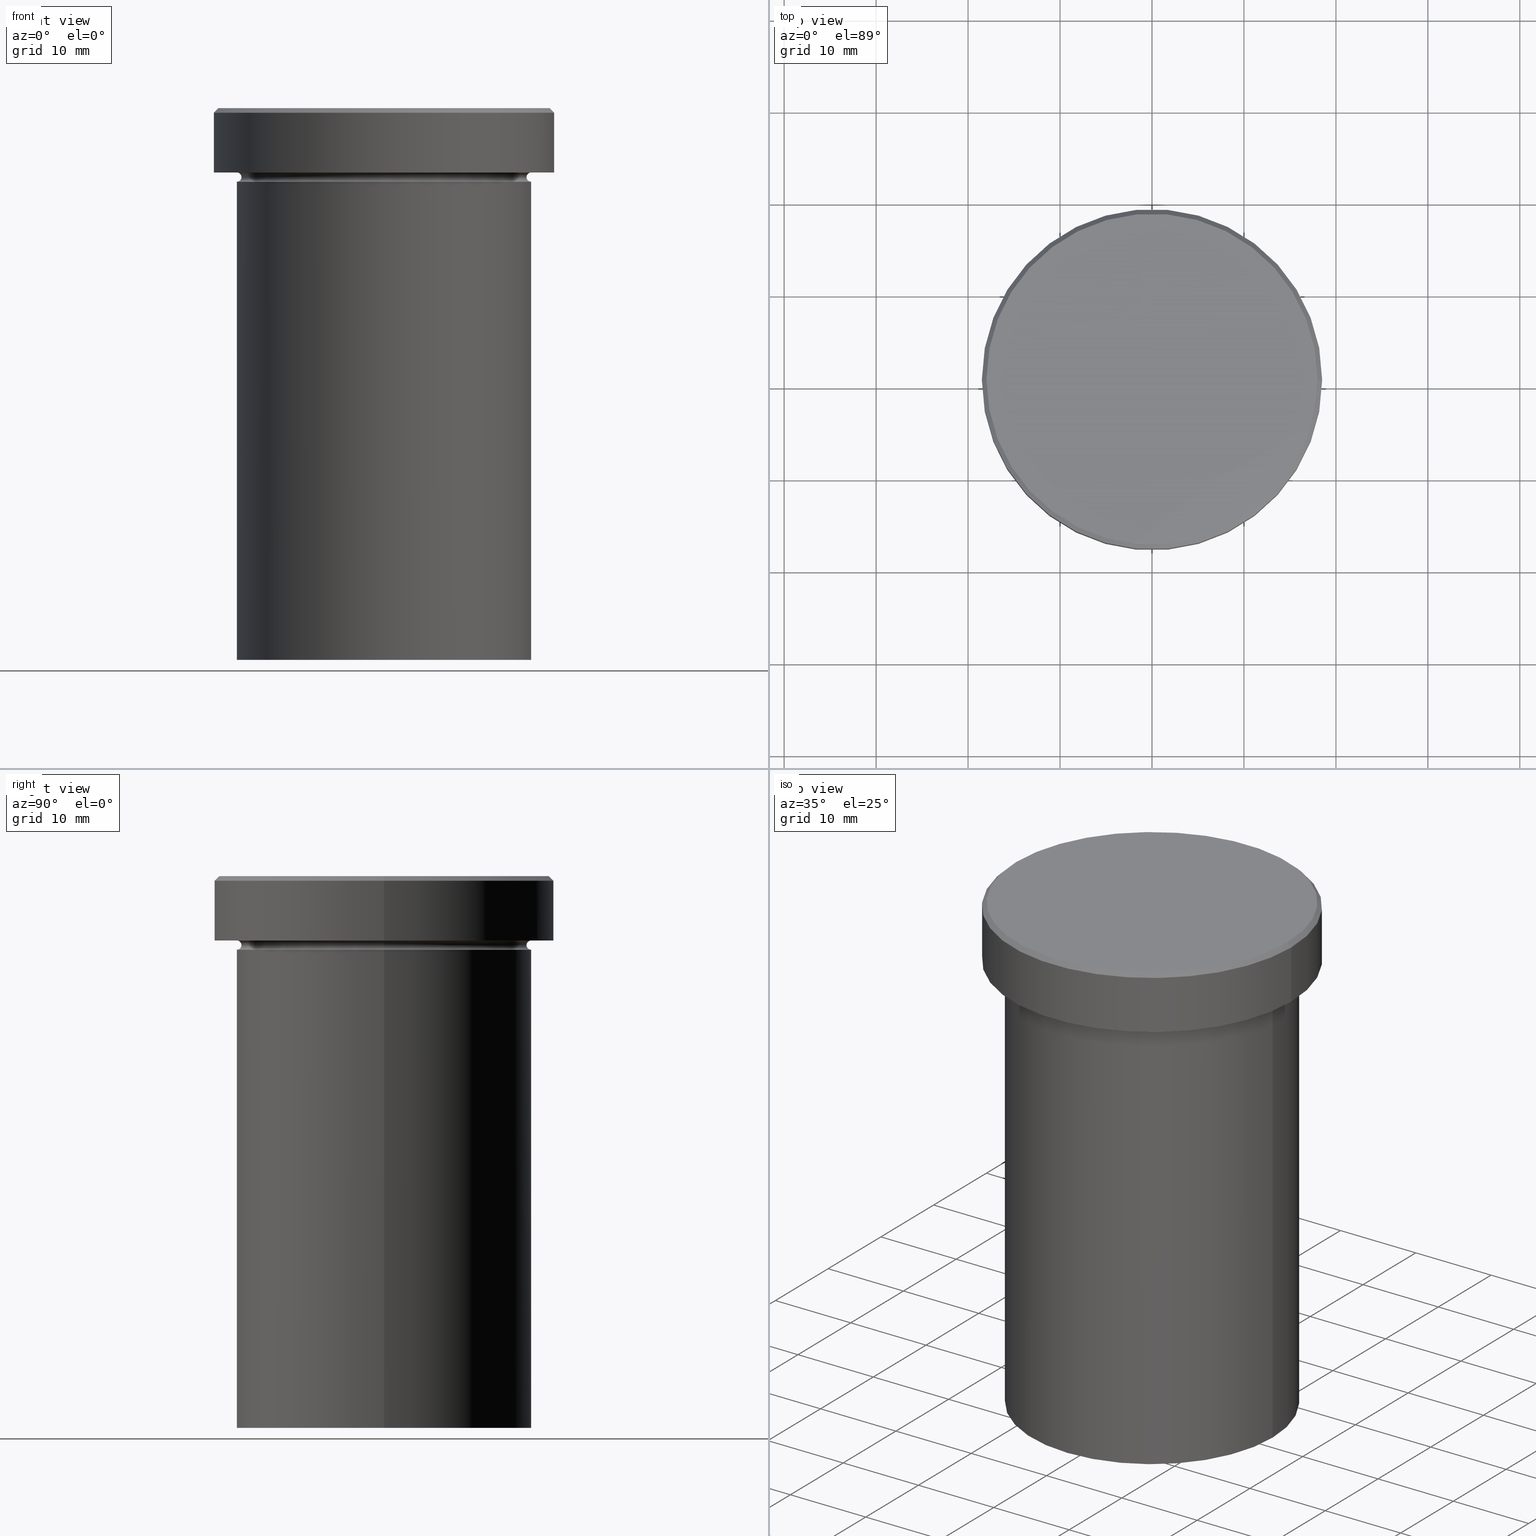
[diagram: canonical four-view strip — front | top / right | iso, engineering-drawing reading convention]
A machine part, canonical four-view strip (front | top / right | iso — engineering-drawing reading convention). The complete STEP part file that produces these views, byte-faithful:
ISO-10303-21;
HEADER;
FILE_DESCRIPTION (( 'STEP AP203' ),
    '1' );
FILE_NAME ('1dc0.STEP',
    '2024-01-02T18:53:36',
    ( '' ),
    ( '' ),
    'SwSTEP 2.0',
    'SolidWorks 2019',
    '' );
FILE_SCHEMA (( 'CONFIG_CONTROL_DESIGN' ));
ENDSEC;

DATA;
#1 = DIRECTION ( 'NONE',  ( 1.000000000000000000, 0.000000000000000000, 0.000000000000000000 ) ) ;
#2 = ORIENTED_EDGE ( 'NONE', *, *, #13, .T. ) ;
#3 = PERSON_AND_ORGANIZATION ( #186, #145 ) ;
#4 = EDGE_CURVE ( 'NONE', #205, #122, #215, .T. ) ;
#5 = DIRECTION ( 'NONE',  ( 1.000000000000000000, 0.000000000000000000, 0.000000000000000000 ) ) ;
#6 = ORIENTED_EDGE ( 'NONE', *, *, #24, .F. ) ;
#7 = APPROVAL_ROLE ( '' ) ;
#8 = TOROIDAL_SURFACE ( 'NONE', #173, 16.00000000000000000, 0.5000000000000000000 ) ;
#9 = FACE_OUTER_BOUND ( 'NONE', #139, .T. ) ;
#10 = DATE_AND_TIME ( #37, #379 ) ;
#11 = CIRCLE ( 'NONE', #300, 16.00000000000000000 ) ;
#12 = CARTESIAN_POINT ( 'NONE',  ( 0.000000000000000000, 0.000000000000000000, -7.500000000000000000 ) ) ;
#13 = EDGE_CURVE ( 'NONE', #41, #221, #184, .T. ) ;
#14 = CARTESIAN_POINT ( 'NONE',  ( -18.00000000000001421, 0.000000000000000000, 0.000000000000000000 ) ) ;
#15 = APPROVAL_STATUS ( 'not_yet_approved' ) ;
#16 = DIRECTION ( 'NONE',  ( -0.000000000000000000, -0.000000000000000000, 1.000000000000000000 ) ) ;
#17 = DIRECTION ( 'NONE',  ( -1.000000000000000000, 0.000000000000000000, 0.000000000000000000 ) ) ;
#18 = CIRCLE ( 'NONE', #331, 0.5000000000000004441 ) ;
#19 = DIRECTION ( 'NONE',  ( 0.000000000000000000, 0.000000000000000000, -1.000000000000000000 ) ) ;
#20 = ORIENTED_EDGE ( 'NONE', *, *, #318, .F. ) ;
#21 = ADVANCED_FACE ( 'NONE', ( #121 ), #8, .F. ) ;
#22 = DIRECTION ( 'NONE',  ( -1.000000000000000000, 0.000000000000000000, 0.000000000000000000 ) ) ;
#23 = ORIENTED_EDGE ( 'NONE', *, *, #103, .T. ) ;
#24 = EDGE_CURVE ( 'NONE', #54, #185, #35, .T. ) ;
#25 = AXIS2_PLACEMENT_3D ( 'NONE', #172, #16, #48 ) ;
#26 = CARTESIAN_POINT ( 'NONE',  ( 0.000000000000000000, 0.000000000000000000, -6.999999999999998224 ) ) ;
#27 = AXIS2_PLACEMENT_3D ( 'NONE', #218, #374, #225 ) ;
#28 = CARTESIAN_POINT ( 'NONE',  ( 0.000000000000000000, 0.000000000000000000, -7.500000000000000000 ) ) ;
#29 = AXIS2_PLACEMENT_3D ( 'NONE', #158, #219, #17 ) ;
#30 = DIRECTION ( 'NONE',  ( -0.000000000000000000, -0.000000000000000000, 1.000000000000000000 ) ) ;
#31 = APPROVAL ( #81, 'NEUR�EN�' ) ;
#32 = ORIENTED_EDGE ( 'NONE', *, *, #112, .T. ) ;
#33 = DIRECTION ( 'NONE',  ( 1.000000000000000000, 0.000000000000000000, 0.000000000000000000 ) ) ;
#34 = LINE ( 'NONE', #314, #244 ) ;
#35 = CIRCLE ( 'NONE', #226, 0.5000000000000004441 ) ;
#36 = EDGE_LOOP ( 'NONE', ( #182, #223, #39, #155 ) ) ;
#37 = CALENDAR_DATE ( 2024, 2, 1 ) ;
#38 = EDGE_CURVE ( 'NONE', #234, #350, #207, .T. ) ;
#39 = ORIENTED_EDGE ( 'NONE', *, *, #87, .T. ) ;
#40 = CC_DESIGN_APPROVAL ( #31, ( #120 ) ) ;
#41 = VERTEX_POINT ( 'NONE', #14 ) ;
#42 = APPROVAL_DATE_TIME ( #197, #31 ) ;
#43 = CARTESIAN_POINT ( 'NONE',  ( 0.000000000000000000, 0.000000000000000000, 0.000000000000000000 ) ) ;
#44 = VERTEX_POINT ( 'NONE', #147 ) ;
#45 = CARTESIAN_POINT ( 'NONE',  ( 0.000000000000000000, 0.000000000000000000, -7.500000000000000000 ) ) ;
#46 = ADVANCED_FACE ( 'NONE', ( #181 ), #273, .T. ) ;
#47 = CARTESIAN_POINT ( 'NONE',  ( 18.50000000000000000, 0.000000000000000000, 0.000000000000000000 ) ) ;
#48 = DIRECTION ( 'NONE',  ( 1.000000000000000000, 0.000000000000000000, 0.000000000000000000 ) ) ;
#49 = AXIS2_PLACEMENT_3D ( 'NONE', #68, #195, #248 ) ;
#50 = ADVANCED_FACE ( 'NONE', ( #278 ), #192, .F. ) ;
#51 = EDGE_LOOP ( 'NONE', ( #287, #32, #166, #6 ) ) ;
#52 = LOCAL_TIME ( 19, 53, 36.00000000000000000, #148 ) ;
#53 = DIRECTION ( 'NONE',  ( -0.000000000000000000, -1.000000000000000000, -0.000000000000000000 ) ) ;
#54 = VERTEX_POINT ( 'NONE', #380 ) ;
#55 = EDGE_CURVE ( 'NONE', #185, #241, #308, .T. ) ;
#56 = VECTOR ( 'NONE', #398, 1000.000000000000114 ) ;
#57 = DIRECTION ( 'NONE',  ( 0.000000000000000000, 0.000000000000000000, -1.000000000000000000 ) ) ;
#58 = TOROIDAL_SURFACE ( 'NONE', #354, 16.00000000000000000, 0.5000000000000000000 ) ;
#59 = DIRECTION ( 'NONE',  ( 0.000000000000000000, 0.000000000000000000, -1.000000000000000000 ) ) ;
#60 = DIRECTION ( 'NONE',  ( -0.000000000000000000, -0.000000000000000000, 1.000000000000000000 ) ) ;
#61 = CC_DESIGN_PERSON_AND_ORGANIZATION_ASSIGNMENT ( #146, #390, ( #120 ) ) ;
#62 = DIRECTION ( 'NONE',  ( -1.000000000000000000, 0.000000000000000000, -0.000000000000000000 ) ) ;
#63 = CYLINDRICAL_SURFACE ( 'NONE', #64, 18.50000000000000000 ) ;
#64 = AXIS2_PLACEMENT_3D ( 'NONE', #43, #272, #149 ) ;
#65 = AXIS2_PLACEMENT_3D ( 'NONE', #72, #117, #385 ) ;
#66 = DIRECTION ( 'NONE',  ( -1.000000000000000000, 0.000000000000000000, 0.000000000000000000 ) ) ;
#67 = DESIGN_CONTEXT ( 'detailed design', #212, 'design' ) ;
#68 = CARTESIAN_POINT ( 'NONE',  ( 0.000000000000000000, 0.000000000000000000, -7.500000000000000000 ) ) ;
#69 = CC_DESIGN_DATE_AND_TIME_ASSIGNMENT ( #105, #75, ( #227 ) ) ;
#70 = VECTOR ( 'NONE', #118, 1000.000000000000000 ) ;
#71 = ORIENTED_EDGE ( 'NONE', *, *, #38, .T. ) ;
#72 = CARTESIAN_POINT ( 'NONE',  ( 0.000000000000000000, 0.000000000000000000, 0.000000000000000000 ) ) ;
#73 = AXIS2_PLACEMENT_3D ( 'NONE', #313, #190, #258 ) ;
#74 = ORIENTED_EDGE ( 'NONE', *, *, #180, .F. ) ;
#75 = DATE_TIME_ROLE ( 'creation_date' ) ;
#76 = DIRECTION ( 'NONE',  ( -0.000000000000000000, -0.000000000000000000, 1.000000000000000000 ) ) ;
#77 = ORIENTED_EDGE ( 'NONE', *, *, #82, .F. ) ;
#78 = PERSON_AND_ORGANIZATION_ROLE ( 'creator' ) ;
#79 = DIRECTION ( 'NONE',  ( -0.000000000000000000, -0.000000000000000000, 1.000000000000000000 ) ) ;
#80 = EDGE_LOOP ( 'NONE', ( #399, #262, #277, #124 ) ) ;
#81 = APPROVAL_STATUS ( 'not_yet_approved' ) ;
#82 = EDGE_CURVE ( 'NONE', #389, #122, #34, .T. ) ;
#83 = CARTESIAN_POINT ( 'NONE',  ( 0.000000000000000000, 0.000000000000000000, -60.00000000000000000 ) ) ;
#84 = EDGE_LOOP ( 'NONE', ( #20, #136, #334, #377 ) ) ;
#85 = DIRECTION ( 'NONE',  ( -0.000000000000000000, -0.000000000000000000, 1.000000000000000000 ) ) ;
#86 = CIRCLE ( 'NONE', #29, 16.00000000000000000 ) ;
#87 = EDGE_CURVE ( 'NONE', #221, #122, #183, .T. ) ;
#88 = ORIENTED_EDGE ( 'NONE', *, *, #55, .T. ) ;
#89 = CIRCLE ( 'NONE', #152, 0.5000000000000004441 ) ;
#90 = DIRECTION ( 'NONE',  ( 0.000000000000000000, 0.000000000000000000, -1.000000000000000000 ) ) ;
#91 = ORIENTED_EDGE ( 'NONE', *, *, #394, .T. ) ;
#92 = EDGE_CURVE ( 'NONE', #41, #389, #161, .T. ) ;
#93 = EDGE_LOOP ( 'NONE', ( #95, #352, #381, #347 ) ) ;
#94 = CONICAL_SURFACE ( 'NONE', #324, 18.00000000000001421, 0.7853981633974447263 ) ;
#95 = ORIENTED_EDGE ( 'NONE', *, *, #289, .F. ) ;
#96 = APPLICATION_PROTOCOL_DEFINITION ( 'international standard', 'config_control_design', 1994, #340 ) ;
#97 = ADVANCED_FACE ( 'NONE', ( #342 ), #63, .T. ) ;
#98 = EDGE_LOOP ( 'NONE', ( #88, #168 ) ) ;
#99 = APPLICATION_PROTOCOL_DEFINITION ( 'international standard', 'config_control_design', 1994, #212 ) ;
#100 = CIRCLE ( 'NONE', #229, 16.00000000000000000 ) ;
#101 = ORIENTED_EDGE ( 'NONE', *, *, #103, .F. ) ;
#102 = FACE_BOUND ( 'NONE', #98, .T. ) ;
#103 = EDGE_CURVE ( 'NONE', #292, #44, #11, .T. ) ;
#104 = DIRECTION ( 'NONE',  ( -0.000000000000000000, -0.000000000000000000, 1.000000000000000000 ) ) ;
#105 = DATE_AND_TIME ( #137, #336 ) ;
#106 = LINE ( 'NONE', #360, #128 ) ;
#107 = EDGE_LOOP ( 'NONE', ( #77, #252, #2, #238 ) ) ;
#108 = DIRECTION ( 'NONE',  ( 0.000000000000000000, 0.000000000000000000, -1.000000000000000000 ) ) ;
#109 = AXIS2_PLACEMENT_3D ( 'NONE', #28, #60, #253 ) ;
#110 = CALENDAR_DATE ( 2024, 2, 1 ) ;
#111 = LINE ( 'NONE', #239, #409 ) ;
#112 = EDGE_CURVE ( 'NONE', #142, #241, #127, .T. ) ;
#113 = ORIENTED_EDGE ( 'NONE', *, *, #150, .T. ) ;
#114 = PERSON_AND_ORGANIZATION ( #186, #145 ) ;
#115 = FACE_OUTER_BOUND ( 'NONE', #84, .T. ) ;
#116 = CLOSED_SHELL ( 'NONE', ( #370, #50, #247, #263, #97, #366, #251, #46, #355, #386, #163, #21, #344 ) ) ;
#117 = DIRECTION ( 'NONE',  ( 0.000000000000000000, -0.000000000000000000, 1.000000000000000000 ) ) ;
#118 = DIRECTION ( 'NONE',  ( -0.000000000000000000, -0.000000000000000000, 1.000000000000000000 ) ) ;
#119 = ORIENTED_EDGE ( 'NONE', *, *, #400, .F. ) ;
#120 = SECURITY_CLASSIFICATION ( '', '', #200 ) ;
#121 = FACE_OUTER_BOUND ( 'NONE', #80, .T. ) ;
#122 = VERTEX_POINT ( 'NONE', #169 ) ;
#123 = CARTESIAN_POINT ( 'NONE',  ( -16.00000000000000000, 1.959434878635765131E-15, -7.500000000000000000 ) ) ;
#124 = ORIENTED_EDGE ( 'NONE', *, *, #299, .F. ) ;
#125 = DIRECTION ( 'NONE',  ( 1.000000000000000000, 0.000000000000000000, 0.000000000000000000 ) ) ;
#126 = DIRECTION ( 'NONE',  ( -1.000000000000000000, 1.224646799147349509E-16, 0.000000000000000000 ) ) ;
#127 = CIRCLE ( 'NONE', #343, 0.5000000000000004441 ) ;
#128 = VECTOR ( 'NONE', #138, 1000.000000000000000 ) ;
#129 = CARTESIAN_POINT ( 'NONE',  ( 0.000000000000000000, 0.000000000000000000, 0.000000000000000000 ) ) ;
#130 = FACE_OUTER_BOUND ( 'NONE', #217, .T. ) ;
#131 = CC_DESIGN_PERSON_AND_ORGANIZATION_ASSIGNMENT ( #256, #373, ( #167 ) ) ;
#132 = APPROVAL_PERSON_ORGANIZATION ( #3, #157, #298 ) ;
#133 = DIRECTION ( 'NONE',  ( -0.000000000000000000, -0.000000000000000000, 1.000000000000000000 ) ) ;
#134 = AXIS2_PLACEMENT_3D ( 'NONE', #317, #257, #285 ) ;
#135 = CC_DESIGN_PERSON_AND_ORGANIZATION_ASSIGNMENT ( #242, #78, ( #227 ) ) ;
#136 = ORIENTED_EDGE ( 'NONE', *, *, #216, .F. ) ;
#137 = CALENDAR_DATE ( 2024, 2, 1 ) ;
#138 = DIRECTION ( 'NONE',  ( -0.000000000000000000, -0.000000000000000000, 1.000000000000000000 ) ) ;
#139 = EDGE_LOOP ( 'NONE', ( #119, #319, #71, #74 ) ) ;
#140 = PERSON_AND_ORGANIZATION_ROLE ( 'design_supplier' ) ;
#141 = DIRECTION ( 'NONE',  ( 1.000000000000000000, 0.000000000000000000, 0.000000000000000000 ) ) ;
#142 = VERTEX_POINT ( 'NONE', #391 ) ;
#143 = CARTESIAN_POINT ( 'NONE',  ( 0.000000000000000000, 0.000000000000000000, -7.500000000000000000 ) ) ;
#144 = CC_DESIGN_PERSON_AND_ORGANIZATION_ASSIGNMENT ( #303, #395, ( #301 ) ) ;
#145 = ORGANIZATION ( 'NEUR�EN�', 'NEUR�EN�', '' ) ;
#146 = PERSON_AND_ORGANIZATION ( #186, #145 ) ;
#147 = CARTESIAN_POINT ( 'NONE',  ( 16.00000000000000000, 0.000000000000000000, -60.00000000000000000 ) ) ;
#148 = COORDINATED_UNIVERSAL_TIME_OFFSET ( 1, 0, .AHEAD. ) ;
#149 = DIRECTION ( 'NONE',  ( 1.000000000000000000, 0.000000000000000000, 0.000000000000000000 ) ) ;
#150 = EDGE_CURVE ( 'NONE', #292, #234, #330, .T. ) ;
#151 = AXIS2_PLACEMENT_3D ( 'NONE', #26, #133, #282 ) ;
#152 = AXIS2_PLACEMENT_3D ( 'NONE', #209, #387, #108 ) ;
#153 = ORIENTED_EDGE ( 'NONE', *, *, #279, .T. ) ;
#154 = DIRECTION ( 'NONE',  ( 1.000000000000000000, 0.000000000000000000, 0.000000000000000000 ) ) ;
#155 = ORIENTED_EDGE ( 'NONE', *, *, #4, .F. ) ;
#156 = AXIS2_PLACEMENT_3D ( 'NONE', #363, #214, #154 ) ;
#157 = APPROVAL ( #15, 'NEUR�EN�' ) ;
#158 = CARTESIAN_POINT ( 'NONE',  ( 0.000000000000000000, 0.000000000000000000, -6.999999999999999112 ) ) ;
#159 = CYLINDRICAL_SURFACE ( 'NONE', #193, 16.00000000000000000 ) ;
#160 =( NAMED_UNIT ( * ) SI_UNIT ( $, .STERADIAN. ) SOLID_ANGLE_UNIT ( ) );
#161 = CIRCLE ( 'NONE', #27, 18.00000000000001421 ) ;
#162 = PLANE ( 'NONE',  #73 ) ;
#163 = ADVANCED_FACE ( 'NONE', ( #115 ), #402, .F. ) ;
#164 = ORIENTED_EDGE ( 'NONE', *, *, #4, .T. ) ;
#165 =( LENGTH_UNIT ( ) NAMED_UNIT ( * ) SI_UNIT ( .MILLI., .METRE. ) );
#166 = ORIENTED_EDGE ( 'NONE', *, *, #55, .F. ) ;
#167 = PRODUCT ( '1dc0', '1dc0', '', ( #191 ) ) ;
#168 = ORIENTED_EDGE ( 'NONE', *, *, #299, .T. ) ;
#169 = CARTESIAN_POINT ( 'NONE',  ( 18.50000000000000000, 0.000000000000000000, -0.4999999999999865663 ) ) ;
#170 = EDGE_LOOP ( 'NONE', ( #302, #174 ) ) ;
#171 = EDGE_CURVE ( 'NONE', #122, #221, #338, .T. ) ;
#172 = CARTESIAN_POINT ( 'NONE',  ( 0.000000000000000000, 0.000000000000000000, -6.999999999999998224 ) ) ;
#173 = AXIS2_PLACEMENT_3D ( 'NONE', #306, #19, #22 ) ;
#174 = ORIENTED_EDGE ( 'NONE', *, *, #394, .F. ) ;
#175 = APPROVAL_ROLE ( '' ) ;
#176 = DIRECTION ( 'NONE',  ( 1.000000000000000000, 0.000000000000000000, 0.000000000000000000 ) ) ;
#177 = VECTOR ( 'NONE', #290, 1000.000000000000000 ) ;
#178 = CALENDAR_DATE ( 2024, 2, 1 ) ;
#179 = CARTESIAN_POINT ( 'NONE',  ( 16.00000000000000000, 1.959434878635765131E-15, -6.999999999999999112 ) ) ;
#180 = EDGE_CURVE ( 'NONE', #142, #350, #89, .T. ) ;
#181 = FACE_OUTER_BOUND ( 'NONE', #230, .T. ) ;
#182 = ORIENTED_EDGE ( 'NONE', *, *, #210, .T. ) ;
#183 = CIRCLE ( 'NONE', #333, 18.50000000000000000 ) ;
#184 = LINE ( 'NONE', #392, #56 ) ;
#185 = VERTEX_POINT ( 'NONE', #245 ) ;
#186 = PERSON ( 'NEUR�EN�', 'NEUR�EN�', 'NEUR�EN�', ('NEUR�EN�'), ('NEUR�EN�'), ('NEUR�EN�') ) ;
#187 = AXIS2_PLACEMENT_3D ( 'NONE', #206, #188, #125 ) ;
#188 = DIRECTION ( 'NONE',  ( -0.000000000000000000, -0.000000000000000000, 1.000000000000000000 ) ) ;
#189 = AXIS2_PLACEMENT_3D ( 'NONE', #12, #359, #236 ) ;
#190 = DIRECTION ( 'NONE',  ( 0.000000000000000000, 0.000000000000000000, -1.000000000000000000 ) ) ;
#191 = MECHANICAL_CONTEXT ( 'NONE', #340, 'mechanical' ) ;
#192 = TOROIDAL_SURFACE ( 'NONE', #49, 16.00000000000000000, 0.5000000000000000000 ) ;
#193 = AXIS2_PLACEMENT_3D ( 'NONE', #315, #30, #33 ) ;
#194 = CARTESIAN_POINT ( 'NONE',  ( 18.00000000000001421, 2.234980408443920793E-15, 0.000000000000000000 ) ) ;
#195 = DIRECTION ( 'NONE',  ( 0.000000000000000000, 0.000000000000000000, -1.000000000000000000 ) ) ;
#196 = ORIENTED_EDGE ( 'NONE', *, *, #92, .T. ) ;
#197 = DATE_AND_TIME ( #178, #388 ) ;
#198 = DIRECTION ( 'NONE',  ( 0.7071067811865451302, 8.659560562354903276E-17, -0.7071067811865500152 ) ) ;
#199 = ORIENTED_EDGE ( 'NONE', *, *, #150, .F. ) ;
#200 = SECURITY_CLASSIFICATION_LEVEL ( 'unclassified' ) ;
#201 = CARTESIAN_POINT ( 'NONE',  ( 16.00000000000000000, 1.959434878635765131E-15, -7.500000000000000000 ) ) ;
#202 =( GEOMETRIC_REPRESENTATION_CONTEXT ( 3 ) GLOBAL_UNCERTAINTY_ASSIGNED_CONTEXT ( ( #405 ) ) GLOBAL_UNIT_ASSIGNED_CONTEXT ( ( #165, #286, #160 ) ) REPRESENTATION_CONTEXT ( 'NONE', 'WORKASPACE' ) );
#203 = COORDINATED_UNIVERSAL_TIME_OFFSET ( 1, 0, .AHEAD. ) ;
#204 = DIRECTION ( 'NONE',  ( 1.000000000000000000, 0.000000000000000000, 0.000000000000000000 ) ) ;
#205 = VERTEX_POINT ( 'NONE', #382 ) ;
#206 = CARTESIAN_POINT ( 'NONE',  ( 0.000000000000000000, 0.000000000000000000, 0.000000000000000000 ) ) ;
#207 = CIRCLE ( 'NONE', #156, 16.00000000000000000 ) ;
#208 = ORIENTED_EDGE ( 'NONE', *, *, #38, .F. ) ;
#209 = CARTESIAN_POINT ( 'NONE',  ( 16.00000000000000000, 0.000000000000000000, -7.500000000000000000 ) ) ;
#210 = EDGE_CURVE ( 'NONE', #205, #267, #270, .T. ) ;
#211 = AXIS2_PLACEMENT_3D ( 'NONE', #269, #76, #204 ) ;
#212 = APPLICATION_CONTEXT ( 'configuration controlled 3d designs of mechanical parts and assemblies' ) ;
#213 = CARTESIAN_POINT ( 'NONE',  ( 0.000000000000000000, 0.000000000000000000, -60.00000000000000000 ) ) ;
#214 = DIRECTION ( 'NONE',  ( -0.000000000000000000, -0.000000000000000000, 1.000000000000000000 ) ) ;
#215 = LINE ( 'NONE', #47, #70 ) ;
#216 = EDGE_CURVE ( 'NONE', #142, #54, #237, .T. ) ;
#217 = EDGE_LOOP ( 'NONE', ( #265, #101 ) ) ;
#218 = CARTESIAN_POINT ( 'NONE',  ( 0.000000000000000000, 0.000000000000000000, 0.000000000000000000 ) ) ;
#219 = DIRECTION ( 'NONE',  ( -0.000000000000000000, -0.000000000000000000, 1.000000000000000000 ) ) ;
#220 = EDGE_CURVE ( 'NONE', #44, #292, #280, .T. ) ;
#221 = VERTEX_POINT ( 'NONE', #357 ) ;
#222 = APPROVAL_PERSON_ORGANIZATION ( #114, #31, #7 ) ;
#223 = ORIENTED_EDGE ( 'NONE', *, *, #240, .T. ) ;
#224 = PERSON_AND_ORGANIZATION ( #186, #145 ) ;
#225 = DIRECTION ( 'NONE',  ( 1.000000000000000000, 0.000000000000000000, 0.000000000000000000 ) ) ;
#226 = AXIS2_PLACEMENT_3D ( 'NONE', #276, #53, #246 ) ;
#227 = PRODUCT_DEFINITION ( 'NEZN�M�', '', #301, #67 ) ;
#228 = CARTESIAN_POINT ( 'NONE',  ( 0.000000000000000000, 0.000000000000000000, -8.000000000000000000 ) ) ;
#229 = AXIS2_PLACEMENT_3D ( 'NONE', #228, #312, #316 ) ;
#230 = EDGE_LOOP ( 'NONE', ( #364, #91, #164, #407 ) ) ;
#231 = EDGE_LOOP ( 'NONE', ( #297, #113, #356, #358 ) ) ;
#232 = APPROVAL_DATE_TIME ( #271, #376 ) ;
#233 = FACE_OUTER_BOUND ( 'NONE', #383, .T. ) ;
#234 = VERTEX_POINT ( 'NONE', #296 ) ;
#235 = COORDINATED_UNIVERSAL_TIME_OFFSET ( 1, 0, .AHEAD. ) ;
#236 = DIRECTION ( 'NONE',  ( 1.000000000000000000, 0.000000000000000000, 0.000000000000000000 ) ) ;
#237 = CIRCLE ( 'NONE', #189, 15.50000000000000000 ) ;
#238 = ORIENTED_EDGE ( 'NONE', *, *, #171, .F. ) ;
#239 = CARTESIAN_POINT ( 'NONE',  ( 16.00000000000000000, 0.000000000000000000, 0.000000000000000000 ) ) ;
#240 = EDGE_CURVE ( 'NONE', #267, #221, #106, .T. ) ;
#241 = VERTEX_POINT ( 'NONE', #179 ) ;
#242 = PERSON_AND_ORGANIZATION ( #186, #145 ) ;
#243 = DIRECTION ( 'NONE',  ( 0.000000000000000000, 0.000000000000000000, -1.000000000000000000 ) ) ;
#244 = VECTOR ( 'NONE', #198, 1000.000000000000114 ) ;
#245 = CARTESIAN_POINT ( 'NONE',  ( -16.00000000000000000, 0.000000000000000000, -6.999999999999999112 ) ) ;
#246 = DIRECTION ( 'NONE',  ( 0.000000000000000000, 0.000000000000000000, -1.000000000000000000 ) ) ;
#247 = ADVANCED_FACE ( 'NONE', ( #9 ), #58, .F. ) ;
#248 = DIRECTION ( 'NONE',  ( -1.000000000000000000, 0.000000000000000000, 0.000000000000000000 ) ) ;
#249 = AXIS2_PLACEMENT_3D ( 'NONE', #45, #85, #141 ) ;
#250 = DIRECTION ( 'NONE',  ( 1.000000000000000000, 0.000000000000000000, 0.000000000000000000 ) ) ;
#251 = ADVANCED_FACE ( 'NONE', ( #233 ), #274, .T. ) ;
#252 = ORIENTED_EDGE ( 'NONE', *, *, #92, .F. ) ;
#253 = DIRECTION ( 'NONE',  ( 1.000000000000000000, 0.000000000000000000, 0.000000000000000000 ) ) ;
#254 = DIRECTION ( 'NONE',  ( 0.000000000000000000, 0.000000000000000000, 1.000000000000000000 ) ) ;
#255 = CIRCLE ( 'NONE', #151, 18.50000000000000000 ) ;
#256 = PERSON_AND_ORGANIZATION ( #186, #145 ) ;
#257 = DIRECTION ( 'NONE',  ( -0.000000000000000000, -0.000000000000000000, 1.000000000000000000 ) ) ;
#258 = DIRECTION ( 'NONE',  ( -1.000000000000000000, 0.000000000000000000, -0.000000000000000000 ) ) ;
#259 = EDGE_LOOP ( 'NONE', ( #199, #23, #153, #208 ) ) ;
#260 = CARTESIAN_POINT ( 'NONE',  ( 0.000000000000000000, 0.000000000000000000, 0.000000000000000000 ) ) ;
#261 = AXIS2_PLACEMENT_3D ( 'NONE', #83, #396, #266 ) ;
#262 = ORIENTED_EDGE ( 'NONE', *, *, #216, .T. ) ;
#263 = ADVANCED_FACE ( 'NONE', ( #322 ), #353, .T. ) ;
#264 = CARTESIAN_POINT ( 'NONE',  ( -16.00000000000000000, 1.959434878635765131E-15, 0.000000000000000000 ) ) ;
#265 = ORIENTED_EDGE ( 'NONE', *, *, #220, .F. ) ;
#266 = DIRECTION ( 'NONE',  ( 1.000000000000000000, 0.000000000000000000, 0.000000000000000000 ) ) ;
#267 = VERTEX_POINT ( 'NONE', #326 ) ;
#268 = COORDINATED_UNIVERSAL_TIME_OFFSET ( 1, 0, .AHEAD. ) ;
#269 = CARTESIAN_POINT ( 'NONE',  ( 0.000000000000000000, 0.000000000000000000, 0.000000000000000000 ) ) ;
#270 = CIRCLE ( 'NONE', #25, 18.50000000000000000 ) ;
#271 = DATE_AND_TIME ( #110, #307 ) ;
#272 = DIRECTION ( 'NONE',  ( -0.000000000000000000, -0.000000000000000000, 1.000000000000000000 ) ) ;
#273 = CYLINDRICAL_SURFACE ( 'NONE', #309, 18.50000000000000000 ) ;
#274 = PLANE ( 'NONE',  #65 ) ;
#275 = CIRCLE ( 'NONE', #187, 18.00000000000001421 ) ;
#276 = CARTESIAN_POINT ( 'NONE',  ( -16.00000000000000000, 0.000000000000000000, -7.500000000000000000 ) ) ;
#277 = ORIENTED_EDGE ( 'NONE', *, *, #24, .T. ) ;
#278 = FACE_OUTER_BOUND ( 'NONE', #51, .T. ) ;
#279 = EDGE_CURVE ( 'NONE', #44, #350, #111, .T. ) ;
#280 = CIRCLE ( 'NONE', #261, 16.00000000000000000 ) ;
#281 = FACE_OUTER_BOUND ( 'NONE', #259, .T. ) ;
#282 = DIRECTION ( 'NONE',  ( 1.000000000000000000, 0.000000000000000000, 0.000000000000000000 ) ) ;
#283 = CIRCLE ( 'NONE', #109, 15.50000000000000000 ) ;
#284 = CC_DESIGN_PERSON_AND_ORGANIZATION_ASSIGNMENT ( #348, #140, ( #301 ) ) ;
#285 = DIRECTION ( 'NONE',  ( -1.000000000000000000, 0.000000000000000000, 0.000000000000000000 ) ) ;
#286 =( NAMED_UNIT ( * ) PLANE_ANGLE_UNIT ( ) SI_UNIT ( $, .RADIAN. ) );
#287 = ORIENTED_EDGE ( 'NONE', *, *, #400, .T. ) ;
#288 = DIRECTION ( 'NONE',  ( -1.000000000000000000, 0.000000000000000000, 0.000000000000000000 ) ) ;
#289 = EDGE_CURVE ( 'NONE', #389, #41, #275, .T. ) ;
#290 = DIRECTION ( 'NONE',  ( -0.000000000000000000, -0.000000000000000000, 1.000000000000000000 ) ) ;
#291 = CC_DESIGN_APPROVAL ( #376, ( #227 ) ) ;
#292 = VERTEX_POINT ( 'NONE', #305 ) ;
#293 = APPROVAL_DATE_TIME ( #10, #157 ) ;
#294 = CARTESIAN_POINT ( 'NONE',  ( 0.000000000000000000, 0.000000000000000000, -0.4999999999999865663 ) ) ;
#295 = DATE_TIME_ROLE ( 'classification_date' ) ;
#296 = CARTESIAN_POINT ( 'NONE',  ( -16.00000000000000000, 1.959434878635765131E-15, -8.000000000000000000 ) ) ;
#297 = ORIENTED_EDGE ( 'NONE', *, *, #220, .T. ) ;
#298 = APPROVAL_ROLE ( '' ) ;
#299 = EDGE_CURVE ( 'NONE', #241, #185, #86, .T. ) ;
#300 = AXIS2_PLACEMENT_3D ( 'NONE', #213, #328, #1 ) ;
#301 = PRODUCT_DEFINITION_FORMATION_WITH_SPECIFIED_SOURCE ( 'LIBOVOLN�', '', #167, .NOT_KNOWN. ) ;
#302 = ORIENTED_EDGE ( 'NONE', *, *, #210, .F. ) ;
#303 = PERSON_AND_ORGANIZATION ( #186, #145 ) ;
#304 = DIRECTION ( 'NONE',  ( -1.000000000000000000, -1.224646799147349509E-16, 0.000000000000000000 ) ) ;
#305 = CARTESIAN_POINT ( 'NONE',  ( -16.00000000000000000, 1.959434878635765131E-15, -60.00000000000000000 ) ) ;
#306 = CARTESIAN_POINT ( 'NONE',  ( 0.000000000000000000, 0.000000000000000000, -7.500000000000000000 ) ) ;
#307 = LOCAL_TIME ( 19, 53, 36.00000000000000000, #235 ) ;
#308 = CIRCLE ( 'NONE', #134, 16.00000000000000000 ) ;
#309 = AXIS2_PLACEMENT_3D ( 'NONE', #346, #104, #250 ) ;
#310 = CONICAL_SURFACE ( 'NONE', #362, 18.00000000000001421, 0.7853981633974447263 ) ;
#311 = CARTESIAN_POINT ( 'NONE',  ( 16.00000000000000000, 0.000000000000000000, -8.000000000000000000 ) ) ;
#312 = DIRECTION ( 'NONE',  ( -0.000000000000000000, -0.000000000000000000, 1.000000000000000000 ) ) ;
#313 = CARTESIAN_POINT ( 'NONE',  ( 0.000000000000000000, 16.00000000000000000, -60.00000000000000000 ) ) ;
#314 = CARTESIAN_POINT ( 'NONE',  ( 18.00000000000001421, 2.204364238465237794E-15, 0.000000000000000000 ) ) ;
#315 = CARTESIAN_POINT ( 'NONE',  ( 0.000000000000000000, 0.000000000000000000, 0.000000000000000000 ) ) ;
#316 = DIRECTION ( 'NONE',  ( 1.000000000000000000, 0.000000000000000000, 0.000000000000000000 ) ) ;
#317 = CARTESIAN_POINT ( 'NONE',  ( 0.000000000000000000, 0.000000000000000000, -6.999999999999999112 ) ) ;
#318 = EDGE_CURVE ( 'NONE', #54, #234, #18, .T. ) ;
#319 = ORIENTED_EDGE ( 'NONE', *, *, #318, .T. ) ;
#320 = ORIENTED_EDGE ( 'NONE', *, *, #289, .T. ) ;
#321 = CALENDAR_DATE ( 2024, 2, 1 ) ;
#322 = FACE_OUTER_BOUND ( 'NONE', #231, .T. ) ;
#323 = AXIS2_PLACEMENT_3D ( 'NONE', #337, #59, #62 ) ;
#324 = AXIS2_PLACEMENT_3D ( 'NONE', #369, #57, #66 ) ;
#325 = DATE_AND_TIME ( #321, #52 ) ;
#326 = CARTESIAN_POINT ( 'NONE',  ( -18.50000000000000000, 2.265596578422603396E-15, -6.999999999999998224 ) ) ;
#327 = PRODUCT_RELATED_PRODUCT_CATEGORY ( 'detail', '', ( #167 ) ) ;
#328 = DIRECTION ( 'NONE',  ( -0.000000000000000000, -0.000000000000000000, 1.000000000000000000 ) ) ;
#329 = COORDINATED_UNIVERSAL_TIME_OFFSET ( 1, 0, .AHEAD. ) ;
#330 = LINE ( 'NONE', #264, #177 ) ;
#331 = AXIS2_PLACEMENT_3D ( 'NONE', #123, #335, #126 ) ;
#332 = DIRECTION ( 'NONE',  ( -1.224646799147353207E-16, 1.000000000000000000, 0.000000000000000000 ) ) ;
#333 = AXIS2_PLACEMENT_3D ( 'NONE', #401, #90, #368 ) ;
#334 = ORIENTED_EDGE ( 'NONE', *, *, #180, .T. ) ;
#335 = DIRECTION ( 'NONE',  ( 1.224646799147353207E-16, 1.000000000000000000, 0.000000000000000000 ) ) ;
#336 = LOCAL_TIME ( 19, 53, 36.00000000000000000, #268 ) ;
#337 = CARTESIAN_POINT ( 'NONE',  ( 0.000000000000000000, 18.50000000000000000, -6.999999999999999112 ) ) ;
#338 = CIRCLE ( 'NONE', #371, 18.50000000000000000 ) ;
#339 = PLANE ( 'NONE',  #323 ) ;
#340 = APPLICATION_CONTEXT ( 'configuration controlled 3d designs of mechanical parts and assemblies' ) ;
#341 = APPROVAL_STATUS ( 'not_yet_approved' ) ;
#342 = FACE_OUTER_BOUND ( 'NONE', #36, .T. ) ;
#343 = AXIS2_PLACEMENT_3D ( 'NONE', #201, #332, #304 ) ;
#344 = ADVANCED_FACE ( 'NONE', ( #367 ), #310, .T. ) ;
#345 = CC_DESIGN_SECURITY_CLASSIFICATION ( #120, ( #301 ) ) ;
#346 = CARTESIAN_POINT ( 'NONE',  ( 0.000000000000000000, 0.000000000000000000, 0.000000000000000000 ) ) ;
#347 = ORIENTED_EDGE ( 'NONE', *, *, #13, .F. ) ;
#348 = PERSON_AND_ORGANIZATION ( #186, #145 ) ;
#349 = MANIFOLD_SOLID_BREP ( 'Zkosen�1', #116 ) ;
#350 = VERTEX_POINT ( 'NONE', #311 ) ;
#351 = DIRECTION ( 'NONE',  ( -0.000000000000000000, -0.000000000000000000, 1.000000000000000000 ) ) ;
#352 = ORIENTED_EDGE ( 'NONE', *, *, #82, .T. ) ;
#353 = CYLINDRICAL_SURFACE ( 'NONE', #211, 16.00000000000000000 ) ;
#354 = AXIS2_PLACEMENT_3D ( 'NONE', #143, #351, #5 ) ;
#355 = ADVANCED_FACE ( 'NONE', ( #102, #404 ), #339, .T. ) ;
#356 = ORIENTED_EDGE ( 'NONE', *, *, #361, .F. ) ;
#357 = CARTESIAN_POINT ( 'NONE',  ( -18.50000000000000000, 2.265596578422603396E-15, -0.4999999999999865663 ) ) ;
#358 = ORIENTED_EDGE ( 'NONE', *, *, #279, .F. ) ;
#359 = DIRECTION ( 'NONE',  ( -0.000000000000000000, -0.000000000000000000, 1.000000000000000000 ) ) ;
#360 = CARTESIAN_POINT ( 'NONE',  ( -18.50000000000000000, 2.265596578422603396E-15, 0.000000000000000000 ) ) ;
#361 = EDGE_CURVE ( 'NONE', #350, #234, #100, .T. ) ;
#362 = AXIS2_PLACEMENT_3D ( 'NONE', #129, #378, #288 ) ;
#363 = CARTESIAN_POINT ( 'NONE',  ( 0.000000000000000000, 0.000000000000000000, -8.000000000000000000 ) ) ;
#364 = ORIENTED_EDGE ( 'NONE', *, *, #240, .F. ) ;
#365 = APPROVAL_PERSON_ORGANIZATION ( #224, #376, #175 ) ;
#366 = ADVANCED_FACE ( 'NONE', ( #130 ), #162, .T. ) ;
#367 = FACE_OUTER_BOUND ( 'NONE', #107, .T. ) ;
#368 = DIRECTION ( 'NONE',  ( 1.000000000000000000, 0.000000000000000000, 0.000000000000000000 ) ) ;
#369 = CARTESIAN_POINT ( 'NONE',  ( 0.000000000000000000, 0.000000000000000000, 0.000000000000000000 ) ) ;
#370 = ADVANCED_FACE ( 'NONE', ( #408 ), #94, .T. ) ;
#371 = AXIS2_PLACEMENT_3D ( 'NONE', #294, #243, #176 ) ;
#372 = DIRECTION ( 'NONE',  ( 1.000000000000000000, 0.000000000000000000, 0.000000000000000000 ) ) ;
#373 = PERSON_AND_ORGANIZATION_ROLE ( 'design_owner' ) ;
#374 = DIRECTION ( 'NONE',  ( -0.000000000000000000, -0.000000000000000000, 1.000000000000000000 ) ) ;
#375 = ADVANCED_BREP_SHAPE_REPRESENTATION ( '1dc0', ( #349, #406 ), #202 ) ;
#376 = APPROVAL ( #341, 'NEUR�EN�' ) ;
#377 = ORIENTED_EDGE ( 'NONE', *, *, #361, .T. ) ;
#378 = DIRECTION ( 'NONE',  ( 0.000000000000000000, 0.000000000000000000, -1.000000000000000000 ) ) ;
#379 = LOCAL_TIME ( 19, 53, 36.00000000000000000, #203 ) ;
#380 = CARTESIAN_POINT ( 'NONE',  ( -15.50000000000000000, 1.928818708657081344E-15, -7.500000000000000000 ) ) ;
#381 = ORIENTED_EDGE ( 'NONE', *, *, #87, .F. ) ;
#382 = CARTESIAN_POINT ( 'NONE',  ( 18.50000000000000000, 0.000000000000000000, -6.999999999999998224 ) ) ;
#383 = EDGE_LOOP ( 'NONE', ( #196, #320 ) ) ;
#384 = SHAPE_DEFINITION_REPRESENTATION ( #393, #375 ) ;
#385 = DIRECTION ( 'NONE',  ( 1.000000000000000000, 0.000000000000000000, 0.000000000000000000 ) ) ;
#386 = ADVANCED_FACE ( 'NONE', ( #281 ), #159, .T. ) ;
#387 = DIRECTION ( 'NONE',  ( 0.000000000000000000, -1.000000000000000000, 0.000000000000000000 ) ) ;
#388 = LOCAL_TIME ( 19, 53, 36.00000000000000000, #329 ) ;
#389 = VERTEX_POINT ( 'NONE', #194 ) ;
#390 = PERSON_AND_ORGANIZATION_ROLE ( 'classification_officer' ) ;
#391 = CARTESIAN_POINT ( 'NONE',  ( 15.50000000000000000, 0.000000000000000000, -7.500000000000000000 ) ) ;
#392 = CARTESIAN_POINT ( 'NONE',  ( -18.00000000000001421, 0.000000000000000000, 0.000000000000000000 ) ) ;
#393 = PRODUCT_DEFINITION_SHAPE ( 'NONE', 'NONE',  #227 ) ;
#394 = EDGE_CURVE ( 'NONE', #267, #205, #255, .T. ) ;
#395 = PERSON_AND_ORGANIZATION_ROLE ( 'creator' ) ;
#396 = DIRECTION ( 'NONE',  ( -0.000000000000000000, -0.000000000000000000, 1.000000000000000000 ) ) ;
#397 = CC_DESIGN_APPROVAL ( #157, ( #301 ) ) ;
#398 = DIRECTION ( 'NONE',  ( -0.7071067811865451302, 0.000000000000000000, -0.7071067811865500152 ) ) ;
#399 = ORIENTED_EDGE ( 'NONE', *, *, #112, .F. ) ;
#400 = EDGE_CURVE ( 'NONE', #54, #142, #283, .T. ) ;
#401 = CARTESIAN_POINT ( 'NONE',  ( 0.000000000000000000, 0.000000000000000000, -0.4999999999999865663 ) ) ;
#402 = TOROIDAL_SURFACE ( 'NONE', #249, 16.00000000000000000, 0.5000000000000000000 ) ;
#403 = CC_DESIGN_DATE_AND_TIME_ASSIGNMENT ( #325, #295, ( #120 ) ) ;
#404 = FACE_OUTER_BOUND ( 'NONE', #170, .T. ) ;
#405 = UNCERTAINTY_MEASURE_WITH_UNIT (LENGTH_MEASURE( 1.000000000000000082E-05 ), #165, 'distance_accuracy_value', 'NONE');
#406 = AXIS2_PLACEMENT_3D ( 'NONE', #260, #254, #372 ) ;
#407 = ORIENTED_EDGE ( 'NONE', *, *, #171, .T. ) ;
#408 = FACE_OUTER_BOUND ( 'NONE', #93, .T. ) ;
#409 = VECTOR ( 'NONE', #79, 1000.000000000000000 ) ;
ENDSEC;
END-ISO-10303-21;
